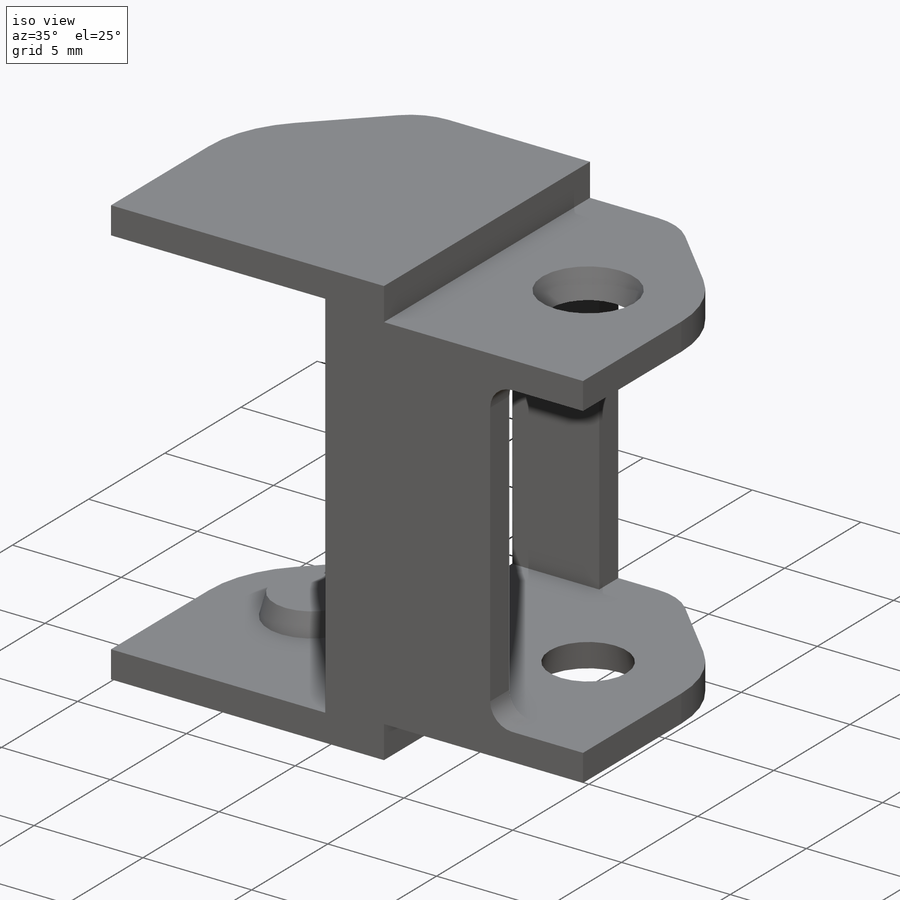
[diagram: iso view]
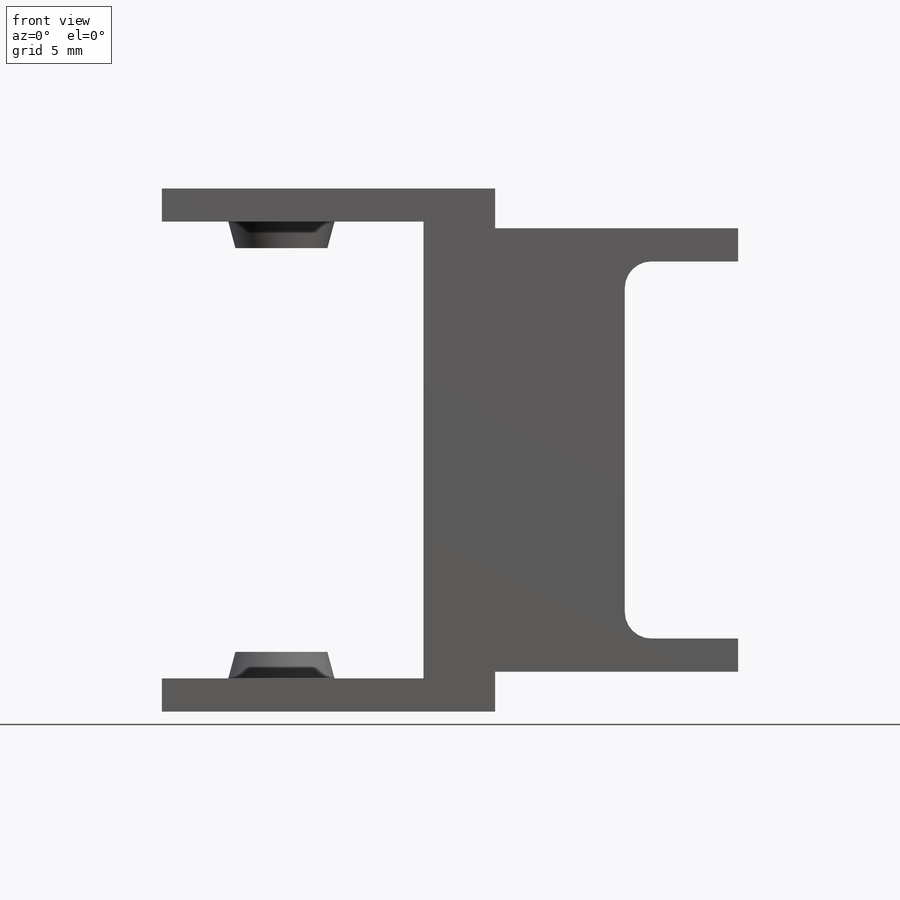
[diagram: front view]
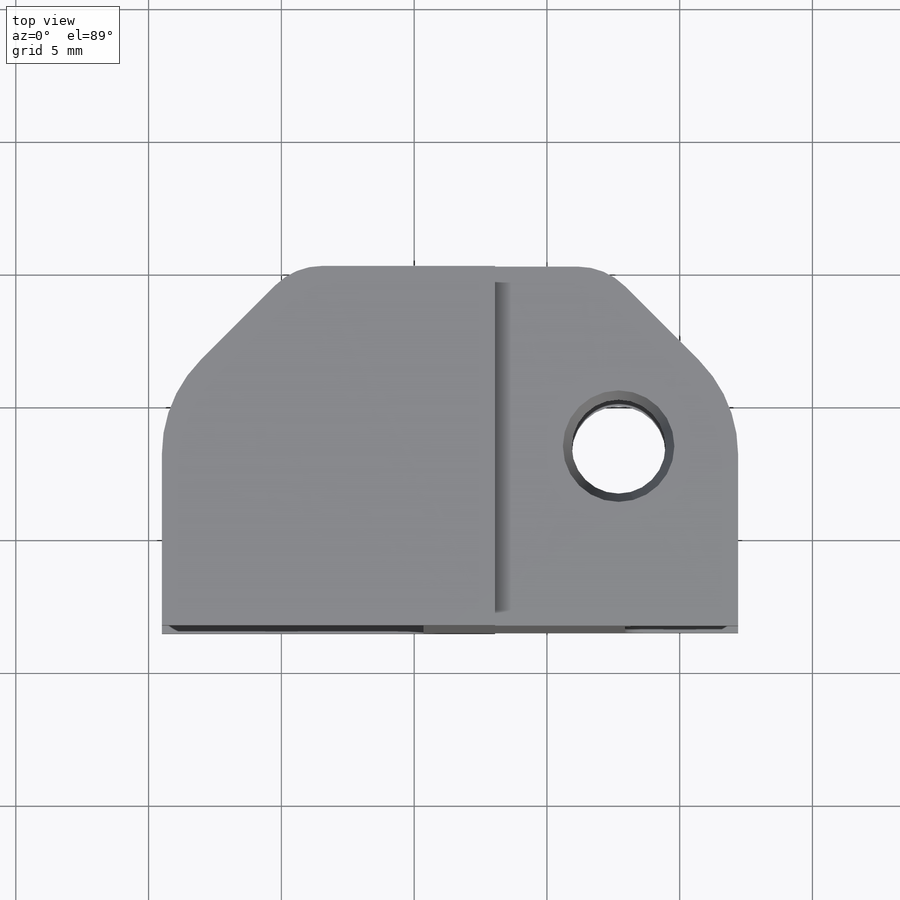
[diagram: top view]
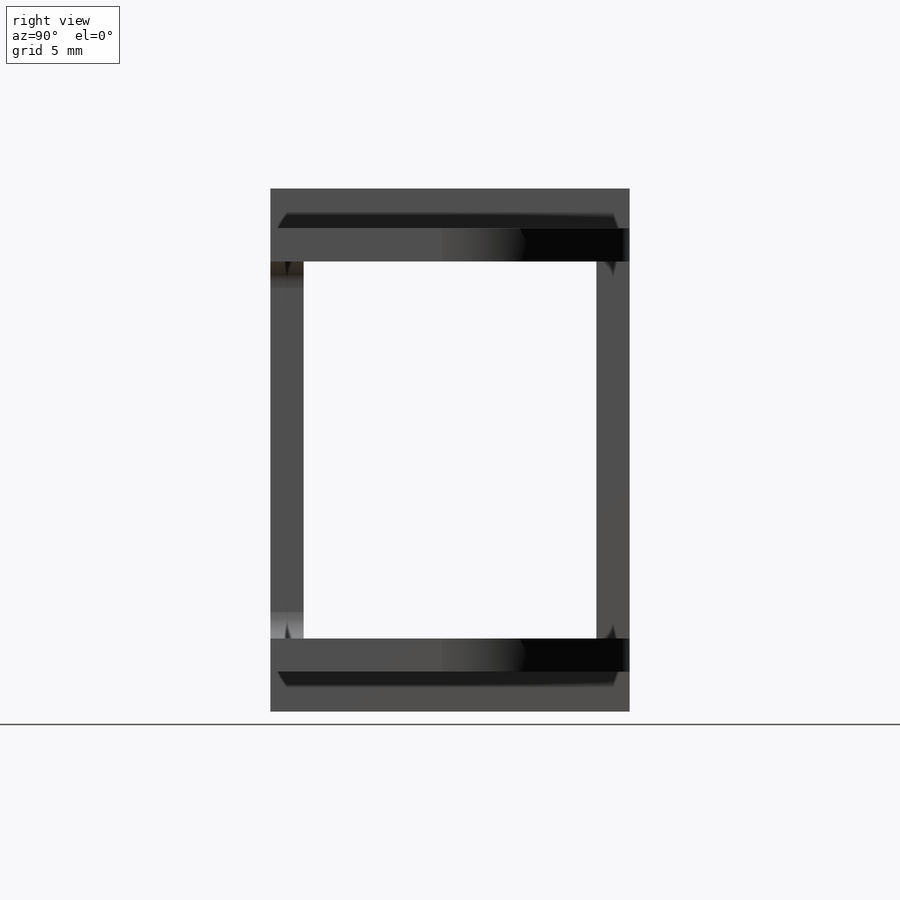
[diagram: right view]
SOLIDWORKS PART (.sldprt)
format: sldprt  version: not decoded by parser v0  size: 291,840 bytes
history: native  units: mm
features: sketch x5, extrude x3, fillet x3, cut_extrude x2, material x1, plane x1, mirror x1, chamfer x1 (+12 scaffold rows collapsed)
feature tree (29):
  scaffold x12  (default folders/planes/origin — collapsed)
  material  "Material <not specified>"
  sketch  "Sketch1"  dims[c1.D1=16.7mm c1.D2=17.2mm c1.D3=0.25mm c1.D4=0.25mm c1.D5=1.25mm c1.D6=1.25mm c1.D7=1.25mm c1.D8=1.25mm c2.D1=0.1mm]
  extrude  "Boss-Extrude1"  Depth=13.525mm
  sketch  "Sketch3"  dims[c1.D1=1.25mm c1.D2=1.25mm c2.D1=2.0mm]
  cut_extrude  "Cut-Extrude1"  Depth=5mm
  sketch  "Sketch4"  dims[D1=4.5mm]
  extrude  "boss pivot"  Depth=1mm
  sketch  "Sketch6"  dims[D1=4.5mm]
  cut_extrude  "pivot recess"  [1 undecoded]
  plane  "Plane1"
  mirror  "Mirror1"
  chamfer  "Chamfer5"  Distance=5mm Angle=45deg
  fillet  "Fillet2"  Radius=5mm
  fillet  "Fillet3"  Radius=2.5mm
  sketch  "Sketch8"
  extrude  "Boss-Extrude4"  [1 undecoded]
  fillet  "Fillet4"  Radius=1mm
decode coverage: 11 of 15 modeling features carry decoded parameters
note: 2 parameter values undecoded
note: suppression state not decoded; provenance and decode notes live in map.json
